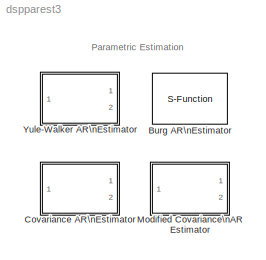
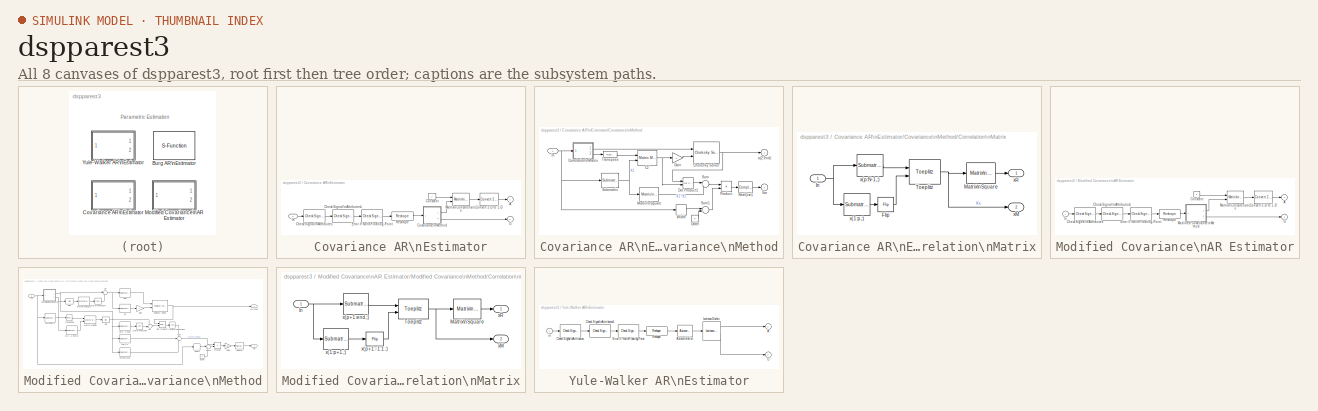
[diagram: thumbnail index - all 8 canvases of the model, root first then tree order]
MODEL dspparest3
KIND library
BLOCK [S-Function] Burg AR\nEstimator
  FunctionName = sdspburg2
  MaskCallbackString = |dspblkburg2|
  MaskDescription = Frame-based parametric AR estimation using the Burg maximum entropy method.  Outputs AR model coefficients A and/or reflection coefficients K, plus the model gain, G.
  MaskDisplay = disp('Burg AR\\nEstimator');\nport_label('output',s.o1,s.o1s);\nport_label('output',s.o2,s.o2s);\nport_label('output',s.o3,s.o3s);\n
  MaskEnableString = on,on,off
  MaskHelp = web(dspbhelp);
  MaskIconFrame = on
  MaskIconOpaque = on
  MaskIconRotate = none
  MaskIconUnits = autoscale
  MaskInitialization = s = dspblkburg2('icon');\n
  MaskPromptString = Output(s):|Inherit estimation order from input dimensions|Estimation order:
  MaskSelfModifiable = on
  MaskStyleString = popup(A and K|A|K),checkbox,edit
  MaskTabNameString = ,,
  MaskToolTipString = on,on,on
  MaskTunableValueString = off,off,off
  MaskType = Burg AR Estimator
  MaskValueString = A|on|4
  MaskVarAliasString = ,,
  MaskVariables = fcn=@1;inheritOrder=@2;ord=@3;
  MaskVisibilityString = on,on,on
  Parameters = fcn, inheritOrder, ord
  Ports = [1, 2]
BLOCK [SubSystem] Covariance AR\nEstimator
  MaskDescription = Frame-based parametric AR estimation using the Covariance method. The AR model coefficients are given in A and the gain is given in G.
  MaskDisplay = disp('Cov AR\\nEstimator')
  MaskEnableString = on
  MaskHelp = web(dspbhelp);
  MaskIconFrame = on
  MaskIconOpaque = off
  MaskIconRotate = none
  MaskIconUnits = autoscale
  MaskPromptString = Estimation order:
  MaskStyleString = edit
  MaskToolTipString = on
  MaskTunableValueString = off
  MaskType = Covariance AR Estimator
  MaskValueString = 4
  MaskVariables = P=@1;
  MaskVisibilityString = on
  Ports = [1, 2]
  TreatAsAtomicUnit = off
BLOCK [Outport] Covariance AR\nEstimator/A
  BusOutputAsStruct = off
  IconDisplay = Port number
  InitialOutput = 0
BLOCK [Reference] Covariance AR\nEstimator/Check Signal\nAttributes  REF=dspsigattribs/Check Signal\nAttributes
  Complexity = Ignore
  DatatypeCheckMethod = Ignore
  DatatypeGeneral = Boolean
  Dimensions = Row vector (2-D)
  DimsCheckMethod = Is...
  DtypeFixedSpecific = Any fixed-point
  DtypeFloatSpecific = Any floating-point
  DtypeIntSpecific = Any integer
  Frame = Frame-based
  Ports = [1, 1]
  SampleMode = Ignore
  ShowPortLabels = on
  SigAttribCheckMethod = Matches attributes exactly
  SourceBlock = dspsigattribs/Check Signal\nAttributes
  SourceType = Check Signal Attributes
BLOCK [Reference] Covariance AR\nEstimator/Check Signal\nAttributes1  REF=dspsigattribs/Check Signal\nAttributes
  Complexity = Ignore
  DatatypeCheckMethod = Ignore
  DatatypeGeneral = Boolean
  Dimensions = Vector (1-D or 2-D)
  DimsCheckMethod = Is...
  DtypeFixedSpecific = Any fixed-point
  DtypeFloatSpecific = Any floating-point
  DtypeIntSpecific = Any integer
  Frame = Ignore
  Ports = [1, 1]
  SampleMode = Ignore
  ShowPortLabels = on
  SigAttribCheckMethod = Does not match attributes exactly
  SourceBlock = dspsigattribs/Check Signal\nAttributes
  SourceType = Check Signal Attributes
BLOCK [Constant] Covariance AR\nEstimator/Constant
  OutDataTypeMode = Inherit via back propagation
BLOCK [Reference] Covariance AR\nEstimator/Convert 2-D to 1-D  REF=dspsigattribs/Convert 2-D to 1-D
  Ports = [1, 1]
  ShowPortLabels = off
  SourceBlock = dspsigattribs/Convert 2-D to 1-D
  SourceType = Convert 2-D to 1-D
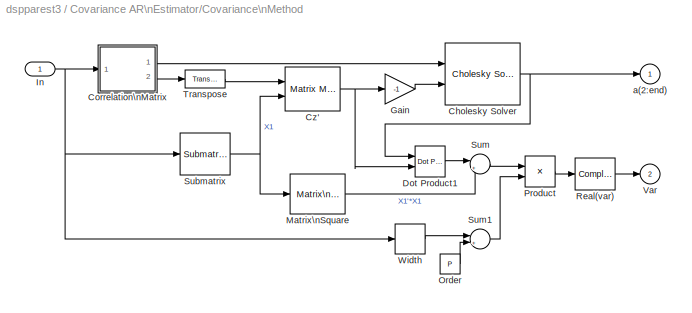
BLOCK [SubSystem] Covariance AR\nEstimator/Covariance\nMethod
  Ports = [1, 2]
  TreatAsAtomicUnit = off
BLOCK [Reference] Covariance AR\nEstimator/Covariance\nMethod/Cholesky Solver  REF=dspsolvers/Cholesky Solver
  Ports = [2, 1]
  ShowPortLabels = on
  SourceBlock = dspsolvers/Cholesky Solver
  SourceType = Cholesky Solver
  errmode = Warning
BLOCK [SubSystem] Covariance AR\nEstimator/Covariance\nMethod/Correlation\nMatrix
  Ports = [1, 2]
  TreatAsAtomicUnit = off
BLOCK [Reference] Covariance AR\nEstimator/Covariance\nMethod/Correlation\nMatrix/Flip  REF=dspindex/Flip
  Ports = [1, 1]
  SourceBlock = dspindex/Flip
  SourceType = Flip
  dim = Columns
BLOCK [Inport] Covariance AR\nEstimator/Covariance\nMethod/Correlation\nMatrix/In
  IconDisplay = Port number
BLOCK [Reference] Covariance AR\nEstimator/Covariance\nMethod/Correlation\nMatrix/Matrix\nSquare  REF=dspmtrx3/Matrix\nSquare
  Ports = [1, 1]
  SourceBlock = dspmtrx3/Matrix\nSquare
  SourceType = Matrix Square
BLOCK [Reference] Covariance AR\nEstimator/Covariance\nMethod/Correlation\nMatrix/Toeplitz  REF=dspmtrx3/Toeplitz
  Ports = [2, 1]
  SourceBlock = dspmtrx3/Toeplitz
  SourceType = Toeplitz
  Symmetric = off
BLOCK [Reference] Covariance AR\nEstimator/Covariance\nMethod/Correlation\nMatrix/x(1:p,:)  REF=dspmtrx3/Submatrix
  ColEndIndex = 1
  ColEndMode = Last
  ColSpan = All columns
  ColStartIndex = 1
  ColStartMode = First
  Ports = [1, 1]
  RowEndIndex = P
  RowEndMode = Index
  RowSpan = Range of rows
  RowStartIndex = P
  RowStartMode = First
  SourceBlock = dspmtrx3/Submatrix
  SourceType = Submatrix
BLOCK [Reference] Covariance AR\nEstimator/Covariance\nMethod/Correlation\nMatrix/x(p:N-1,:)  REF=dspmtrx3/Submatrix
  ColEndIndex = 1
  ColEndMode = Last
  ColSpan = All columns
  ColStartIndex = 1
  ColStartMode = First
  Ports = [1, 1]
  RowEndIndex = 1
  RowEndMode = Offset from last
  RowSpan = Range of rows
  RowStartIndex = P
  RowStartMode = Index
  SourceBlock = dspmtrx3/Submatrix
  SourceType = Submatrix
BLOCK [Outport] Covariance AR\nEstimator/Covariance\nMethod/Correlation\nMatrix/xM
  BusOutputAsStruct = off
  IconDisplay = Port number
  Port = 2
BLOCK [Outport] Covariance AR\nEstimator/Covariance\nMethod/Correlation\nMatrix/xR
  BusOutputAsStruct = off
  IconDisplay = Port number
BLOCK [Reference] Covariance AR\nEstimator/Covariance\nMethod/Cz'  REF=dspmtrx3/Matrix Multiply
  OptimizationLevel = None
  Ports = [2, 1]
  SourceBlock = dspmtrx3/Matrix Multiply
  SourceType = Matrix Multiply
  numInputPorts = 2
BLOCK [Reference] Covariance AR\nEstimator/Covariance\nMethod/Dot Product1  REF=simulink/Math\nOperations/Dot Product
  DoSatur = off
  InputSameDT = off
  LockScale = off
  OutDataType = sfix(16)
  OutScaling = 2^-10
  OutputDataTypeScalingMode = Inherit via internal rule
  Ports = [2, 1]
  RndMeth = Floor
  SourceBlock = simulink/Math\nOperations/Dot Product
  SourceType = Dot Product
BLOCK [Gain] Covariance AR\nEstimator/Covariance\nMethod/Gain
  Gain = -1
BLOCK [Inport] Covariance AR\nEstimator/Covariance\nMethod/In
  IconDisplay = Port number
BLOCK [Reference] Covariance AR\nEstimator/Covariance\nMethod/Matrix\nSquare  REF=dspmtrx3/Matrix\nSquare
  Ports = [1, 1]
  SourceBlock = dspmtrx3/Matrix\nSquare
  SourceType = Matrix Square
BLOCK [Constant] Covariance AR\nEstimator/Covariance\nMethod/Order
  OutDataTypeMode = Inherit via back propagation
  Value = P
BLOCK [Product] Covariance AR\nEstimator/Covariance\nMethod/Product
  Inputs = */
  Ports = [2, 1]
  RndMeth = Floor
BLOCK [ComplexToRealImag] Covariance AR\nEstimator/Covariance\nMethod/Real(var)
  Output = Real
  Ports = [1, 1]
BLOCK [Reference] Covariance AR\nEstimator/Covariance\nMethod/Submatrix  REF=dspmtrx3/Submatrix
  ColEndIndex = 1
  ColEndMode = Last
  ColSpan = All columns
  ColStartIndex = 1
  ColStartMode = First
  Ports = [1, 1]
  RowEndIndex = 1
  RowEndMode = Last
  RowSpan = Range of rows
  RowStartIndex = P+1
  RowStartMode = Index
  SourceBlock = dspmtrx3/Submatrix
  SourceType = Submatrix
BLOCK [Sum] Covariance AR\nEstimator/Covariance\nMethod/Sum
  IconShape = round
  Inputs = |++
  Ports = [2, 1]
BLOCK [Sum] Covariance AR\nEstimator/Covariance\nMethod/Sum1
  IconShape = round
  Inputs = |+-
  Ports = [2, 1]
BLOCK [Reference] Covariance AR\nEstimator/Covariance\nMethod/Transpose  REF=dspmtrx3/Transpose
  Hermitian = on
  Ports = [1, 1]
  SourceBlock = dspmtrx3/Transpose
  SourceType = Transpose
  overflowFlag = on
BLOCK [Outport] Covariance AR\nEstimator/Covariance\nMethod/Var
  BusOutputAsStruct = off
  IconDisplay = Port number
  InitialOutput = 0
  Port = 2
BLOCK [Width] Covariance AR\nEstimator/Covariance\nMethod/Width
  OutputDataTypeScalingMode = All ports same datatype
  ShowAdditionalParam = on
BLOCK [Outport] Covariance AR\nEstimator/Covariance\nMethod/a(2:end)
  BusOutputAsStruct = off
  IconDisplay = Port number
  InitialOutput = 0
BLOCK [Reference] Covariance AR\nEstimator/Error If Not\nFloating-Point  REF=dspsigattribs/Check Signal\nAttributes
  Complexity = Ignore
  DatatypeCheckMethod = Is...
  DatatypeGeneral = Floating-point
  Dimensions = 1-D
  DimsCheckMethod = Ignore
  DtypeFixedSpecific = Any fixed-point
  DtypeFloatSpecific = Any floating-point
  DtypeIntSpecific = Any integer
  Frame = Ignore
  Ports = [1, 1]
  SampleMode = Ignore
  ShowPortLabels = on
  SigAttribCheckMethod = Does not match attributes exactly
  SourceBlock = dspsigattribs/Check Signal\nAttributes
  SourceType = Check Signal Attributes
BLOCK [Outport] Covariance AR\nEstimator/G
  BusOutputAsStruct = off
  IconDisplay = Port number
  InitialOutput = 0
  Port = 2
BLOCK [Inport] Covariance AR\nEstimator/In
  IconDisplay = Port number
BLOCK [Reference] Covariance AR\nEstimator/Matrix\nConcatenation  REF=simulink/Math\nOperations/Matrix\nConcatenation
  Ports = [2, 1]
  SourceBlock = simulink/Math\nOperations/Matrix\nConcatenation
  SourceType = Matrix Concatenation
  catMethod = Vertical
  numInports = 2
BLOCK [Reference] Covariance AR\nEstimator/Reshape  REF=simulink/Math\nOperations/Reshape
  OutputDimensionality = Column vector
  OutputDimensions = [1,1]
  Ports = [1, 1]
  SourceBlock = simulink/Math\nOperations/Reshape
  SourceType = Reshape
BLOCK [SubSystem] Modified Covariance\nAR Estimator
  MaskDescription = Frame-based parametric AR estimation using the Modified Covariance method. The AR model coefficients are given in A and the gain is given in G.
  MaskDisplay = disp('MCov AR\\nEstimator')
  MaskEnableString = on
  MaskHelp = web(dspbhelp);
  MaskIconFrame = on
  MaskIconOpaque = off
  MaskIconRotate = none
  MaskIconUnits = autoscale
  MaskPromptString = Estimation order:
  MaskStyleString = edit
  MaskToolTipString = on
  MaskTunableValueString = off
  MaskType = Modified Covariance AR Estimator
  MaskValueString = 4
  MaskVariables = P=@1;
  MaskVisibilityString = on
  Ports = [1, 2]
  TreatAsAtomicUnit = off
BLOCK [Outport] Modified Covariance\nAR Estimator/A
  BusOutputAsStruct = off
  IconDisplay = Port number
  InitialOutput = 0
BLOCK [Reference] Modified Covariance\nAR Estimator/Check Signal\nAttributes  REF=dspsigattribs/Check Signal\nAttributes
  Complexity = Ignore
  DatatypeCheckMethod = Ignore
  DatatypeGeneral = Boolean
  Dimensions = Row vector (2-D)
  DimsCheckMethod = Is...
  DtypeFixedSpecific = Any fixed-point
  DtypeFloatSpecific = Any floating-point
  DtypeIntSpecific = Any integer
  Frame = Frame-based
  Ports = [1, 1]
  SampleMode = Ignore
  ShowPortLabels = on
  SigAttribCheckMethod = Matches attributes exactly
  SourceBlock = dspsigattribs/Check Signal\nAttributes
  SourceType = Check Signal Attributes
BLOCK [Reference] Modified Covariance\nAR Estimator/Check Signal\nAttributes1  REF=dspsigattribs/Check Signal\nAttributes
  Complexity = Ignore
  DatatypeCheckMethod = Ignore
  DatatypeGeneral = Boolean
  Dimensions = Vector (1-D or 2-D)
  DimsCheckMethod = Is...
  DtypeFixedSpecific = Any fixed-point
  DtypeFloatSpecific = Any floating-point
  DtypeIntSpecific = Any integer
  Frame = Ignore
  Ports = [1, 1]
  SampleMode = Ignore
  ShowPortLabels = on
  SigAttribCheckMethod = Does not match attributes exactly
  SourceBlock = dspsigattribs/Check Signal\nAttributes
  SourceType = Check Signal Attributes
BLOCK [Constant] Modified Covariance\nAR Estimator/Constant
  OutDataTypeMode = Inherit via back propagation
BLOCK [Reference] Modified Covariance\nAR Estimator/Convert 2-D to 1-D  REF=dspsigattribs/Convert 2-D to 1-D
  Ports = [1, 1]
  ShowPortLabels = off
  SourceBlock = dspsigattribs/Convert 2-D to 1-D
  SourceType = Convert 2-D to 1-D
BLOCK [Reference] Modified Covariance\nAR Estimator/Error If Not\nFloating-Point  REF=dspsigattribs/Check Signal\nAttributes
  Complexity = Ignore
  DatatypeCheckMethod = Is...
  DatatypeGeneral = Floating-point
  Dimensions = 1-D
  DimsCheckMethod = Ignore
  DtypeFixedSpecific = Any fixed-point
  DtypeFloatSpecific = Any floating-point
  DtypeIntSpecific = Any integer
  Frame = Ignore
  Ports = [1, 1]
  SampleMode = Ignore
  ShowPortLabels = on
  SigAttribCheckMethod = Does not match attributes exactly
  SourceBlock = dspsigattribs/Check Signal\nAttributes
  SourceType = Check Signal Attributes
BLOCK [Outport] Modified Covariance\nAR Estimator/G
  BusOutputAsStruct = off
  IconDisplay = Port number
  InitialOutput = 0
  Port = 2
BLOCK [Inport] Modified Covariance\nAR Estimator/In
  IconDisplay = Port number
BLOCK [Reference] Modified Covariance\nAR Estimator/Matrix\nConcatenation  REF=simulink/Math\nOperations/Matrix\nConcatenation
  Ports = [2, 1]
  SourceBlock = simulink/Math\nOperations/Matrix\nConcatenation
  SourceType = Matrix Concatenation
  catMethod = Vertical
  numInports = 2
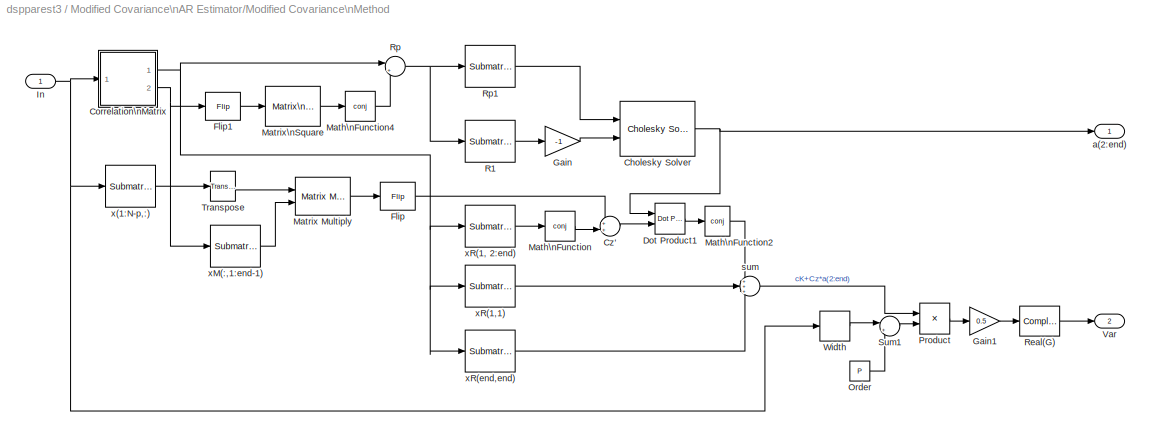
BLOCK [SubSystem] Modified Covariance\nAR Estimator/Modified Covariance\nMethod
  Ports = [1, 2]
  TreatAsAtomicUnit = off
BLOCK [Reference] Modified Covariance\nAR Estimator/Modified Covariance\nMethod/Cholesky Solver  REF=dspsolvers/Cholesky Solver
  Ports = [2, 1]
  ShowPortLabels = on
  SourceBlock = dspsolvers/Cholesky Solver
  SourceType = Cholesky Solver
  errmode = Warning
BLOCK [SubSystem] Modified Covariance\nAR Estimator/Modified Covariance\nMethod/Correlation\nMatrix
  MaskIconFrame = on
  MaskIconOpaque = on
  MaskIconRotate = none
  MaskIconUnits = autoscale
  Ports = [1, 2]
  TreatAsAtomicUnit = off
BLOCK [Inport] Modified Covariance\nAR Estimator/Modified Covariance\nMethod/Correlation\nMatrix/In
  IconDisplay = Port number
BLOCK [Reference] Modified Covariance\nAR Estimator/Modified Covariance\nMethod/Correlation\nMatrix/Matrix\nSquare  REF=dspmtrx3/Matrix\nSquare
  Ports = [1, 1]
  SourceBlock = dspmtrx3/Matrix\nSquare
  SourceType = Matrix Square
BLOCK [Reference] Modified Covariance\nAR Estimator/Modified Covariance\nMethod/Correlation\nMatrix/Toeplitz  REF=dspmtrx3/Toeplitz
  Ports = [2, 1]
  SourceBlock = dspmtrx3/Toeplitz
  SourceType = Toeplitz
  Symmetric = off
  overflowFlag = on
BLOCK [Reference] Modified Covariance\nAR Estimator/Modified Covariance\nMethod/Correlation\nMatrix/x(1:p+1,:)  REF=dspmtrx3/Submatrix
  ColEndIndex = 1
  ColEndMode = Last
  ColSpan = All columns
  ColStartIndex = 1
  ColStartMode = First
  Ports = [1, 1]
  RowEndIndex = P+1
  RowEndMode = Index
  RowSpan = Range of rows
  RowStartIndex = P
  RowStartMode = First
  SourceBlock = dspmtrx3/Submatrix
  SourceType = Submatrix
BLOCK [Reference] Modified Covariance\nAR Estimator/Modified Covariance\nMethod/Correlation\nMatrix/x(p+1:-1:1.:)  REF=dspindex/Flip
  Ports = [1, 1]
  SourceBlock = dspindex/Flip
  SourceType = Flip
  dim = Columns
BLOCK [Reference] Modified Covariance\nAR Estimator/Modified Covariance\nMethod/Correlation\nMatrix/x(p+1:end,:)  REF=dspmtrx3/Submatrix
  ColEndIndex = 1
  ColEndMode = Last
  ColSpan = All columns
  ColStartIndex = 1
  ColStartMode = First
  Ports = [1, 1]
  RowEndIndex = 1
  RowEndMode = Last
  RowSpan = Range of rows
  RowStartIndex = P+1
  RowStartMode = Index
  SourceBlock = dspmtrx3/Submatrix
  SourceType = Submatrix
BLOCK [Outport] Modified Covariance\nAR Estimator/Modified Covariance\nMethod/Correlation\nMatrix/xM
  BusOutputAsStruct = off
  IconDisplay = Port number
  Port = 2
BLOCK [Outport] Modified Covariance\nAR Estimator/Modified Covariance\nMethod/Correlation\nMatrix/xR
  BusOutputAsStruct = off
  IconDisplay = Port number
BLOCK [Sum] Modified Covariance\nAR Estimator/Modified Covariance\nMethod/Cz'
  IconShape = round
  Inputs = ++|
  Ports = [2, 1]
BLOCK [Reference] Modified Covariance\nAR Estimator/Modified Covariance\nMethod/Dot Product1  REF=simulink/Math\nOperations/Dot Product
  DoSatur = off
  InputSameDT = off
  LockScale = off
  OutDataType = sfix(16)
  OutScaling = 2^-10
  OutputDataTypeScalingMode = Inherit via internal rule
  Ports = [2, 1]
  RndMeth = Floor
  SourceBlock = simulink/Math\nOperations/Dot Product
  SourceType = Dot Product
BLOCK [Reference] Modified Covariance\nAR Estimator/Modified Covariance\nMethod/Flip  REF=dspindex/Flip
  Ports = [1, 1]
  SourceBlock = dspindex/Flip
  SourceType = Flip
  dim = Rows
BLOCK [Reference] Modified Covariance\nAR Estimator/Modified Covariance\nMethod/Flip1  REF=dspindex/Flip
  Ports = [1, 1]
  SourceBlock = dspindex/Flip
  SourceType = Flip
  dim = Rows
BLOCK [Gain] Modified Covariance\nAR Estimator/Modified Covariance\nMethod/Gain
  Gain = -1
BLOCK [Gain] Modified Covariance\nAR Estimator/Modified Covariance\nMethod/Gain1
  Gain = 0.5
BLOCK [Inport] Modified Covariance\nAR Estimator/Modified Covariance\nMethod/In
  IconDisplay = Port number
BLOCK [Math] Modified Covariance\nAR Estimator/Modified Covariance\nMethod/Math\nFunction
  Operator = conj
  Ports = [1, 1]
BLOCK [Math] Modified Covariance\nAR Estimator/Modified Covariance\nMethod/Math\nFunction2
  Operator = conj
  Ports = [1, 1]
BLOCK [Math] Modified Covariance\nAR Estimator/Modified Covariance\nMethod/Math\nFunction4
  Operator = conj
  Ports = [1, 1]
BLOCK [Reference] Modified Covariance\nAR Estimator/Modified Covariance\nMethod/Matrix Multiply  REF=dspmtrx3/Matrix Multiply
  OptimizationLevel = None
  Ports = [2, 1]
  SourceBlock = dspmtrx3/Matrix Multiply
  SourceType = Matrix Multiply
  numInputPorts = 2
BLOCK [Reference] Modified Covariance\nAR Estimator/Modified Covariance\nMethod/Matrix\nSquare  REF=dspmtrx3/Matrix\nSquare
  Ports = [1, 1]
  SourceBlock = dspmtrx3/Matrix\nSquare
  SourceType = Matrix Square
BLOCK [Constant] Modified Covariance\nAR Estimator/Modified Covariance\nMethod/Order
  OutDataTypeMode = Inherit via back propagation
  Value = P
BLOCK [Product] Modified Covariance\nAR Estimator/Modified Covariance\nMethod/Product
  Inputs = */
  Ports = [2, 1]
  RndMeth = Floor
BLOCK [Reference] Modified Covariance\nAR Estimator/Modified Covariance\nMethod/R1  REF=dspmtrx3/Submatrix
  ColEndIndex = 1
  ColEndMode = Last
  ColSpan = One column
  ColStartIndex = 2
  ColStartMode = First
  Ports = [1, 1]
  RowEndIndex = P
  RowEndMode = Last
  RowSpan = Range of rows
  RowStartIndex = 2
  RowStartMode = Index
  SourceBlock = dspmtrx3/Submatrix
  SourceType = Submatrix
BLOCK [ComplexToRealImag] Modified Covariance\nAR Estimator/Modified Covariance\nMethod/Real(G)
  Output = Real
  Ports = [1, 1]
BLOCK [Sum] Modified Covariance\nAR Estimator/Modified Covariance\nMethod/Rp
  IconShape = round
  Inputs = |++
  Ports = [2, 1]
BLOCK [Reference] Modified Covariance\nAR Estimator/Modified Covariance\nMethod/Rp1  REF=dspmtrx3/Submatrix
  ColEndIndex = 1
  ColEndMode = Last
  ColSpan = Range of columns
  ColStartIndex = 2
  ColStartMode = Index
  Ports = [1, 1]
  RowEndIndex = P
  RowEndMode = Last
  RowSpan = Range of rows
  RowStartIndex = 2
  RowStartMode = Index
  SourceBlock = dspmtrx3/Submatrix
  SourceType = Submatrix
BLOCK [Sum] Modified Covariance\nAR Estimator/Modified Covariance\nMethod/Sum1
  IconShape = round
  Inputs = |+-
  Ports = [2, 1]
BLOCK [Reference] Modified Covariance\nAR Estimator/Modified Covariance\nMethod/Transpose  REF=dspmtrx3/Transpose
  Hermitian = on
  Ports = [1, 1]
  SourceBlock = dspmtrx3/Transpose
  SourceType = Transpose
  overflowFlag = on
BLOCK [Outport] Modified Covariance\nAR Estimator/Modified Covariance\nMethod/Var
  BusOutputAsStruct = off
  IconDisplay = Port number
  Port = 2
BLOCK [Width] Modified Covariance\nAR Estimator/Modified Covariance\nMethod/Width
  OutputDataTypeScalingMode = All ports same datatype
  ShowAdditionalParam = on
BLOCK [Outport] Modified Covariance\nAR Estimator/Modified Covariance\nMethod/a(2:end)
  BusOutputAsStruct = off
  IconDisplay = Port number
BLOCK [Sum] Modified Covariance\nAR Estimator/Modified Covariance\nMethod/sum
  IconShape = round
  Inputs = +++
  Ports = [3, 1]
BLOCK [Reference] Modified Covariance\nAR Estimator/Modified Covariance\nMethod/x(1:N-p,:)  REF=dspmtrx3/Submatrix
  ColEndIndex = P
  ColEndMode = Index
  ColSpan = All columns
  ColStartIndex = 1
  ColStartMode = First
  Ports = [1, 1]
  RowEndIndex = P
  RowEndMode = Offset from last
  RowSpan = Range of rows
  RowStartIndex = 1
  RowStartMode = First
  SourceBlock = dspmtrx3/Submatrix
  SourceType = Submatrix
BLOCK [Reference] Modified Covariance\nAR Estimator/Modified Covariance\nMethod/xM(:,1:end-1)  REF=dspmtrx3/Submatrix
  ColEndIndex = 1
  ColEndMode = Offset from last
  ColSpan = Range of columns
  ColStartIndex = 1
  ColStartMode = First
  Ports = [1, 1]
  RowEndIndex = P
  RowEndMode = Offset from last
  RowSpan = All rows
  RowStartIndex = 1
  RowStartMode = First
  SourceBlock = dspmtrx3/Submatrix
  SourceType = Submatrix
BLOCK [Reference] Modified Covariance\nAR Estimator/Modified Covariance\nMethod/xR(1, 2:end)  REF=dspmtrx3/Submatrix
  ColEndIndex = 1
  ColEndMode = Last
  ColSpan = Range of columns
  ColStartIndex = 2
  ColStartMode = Index
  Ports = [1, 1]
  RowEndIndex = P
  RowEndMode = Last
  RowSpan = One row
  RowStartIndex = 2
  RowStartMode = First
  SourceBlock = dspmtrx3/Submatrix
  SourceType = Submatrix
BLOCK [Reference] Modified Covariance\nAR Estimator/Modified Covariance\nMethod/xR(1,1)  REF=dspmtrx3/Submatrix
  ColEndIndex = 1
  ColEndMode = Last
  ColSpan = One column
  ColStartIndex = 2
  ColStartMode = First
  Ports = [1, 1]
  RowEndIndex = 1
  RowEndMode = Index
  RowSpan = One row
  RowStartIndex = 2
  RowStartMode = First
  SourceBlock = dspmtrx3/Submatrix
  SourceType = Submatrix
BLOCK [Reference] Modified Covariance\nAR Estimator/Modified Covariance\nMethod/xR(end,end)  REF=dspmtrx3/Submatrix
  ColEndIndex = 1
  ColEndMode = Last
  ColSpan = One column
  ColStartIndex = 0
  ColStartMode = Last
  Ports = [1, 1]
  RowEndIndex = 1
  RowEndMode = Last
  RowSpan = One row
  RowStartIndex = 0
  RowStartMode = Last
  SourceBlock = dspmtrx3/Submatrix
  SourceType = Submatrix
BLOCK [Reference] Modified Covariance\nAR Estimator/Reshape  REF=simulink/Math\nOperations/Reshape
  OutputDimensionality = Column vector
  OutputDimensions = [1,1]
  Ports = [1, 1]
  SourceBlock = simulink/Math\nOperations/Reshape
  SourceType = Reshape
BLOCK [SubSystem] Yule-Walker AR\nEstimator
  MaskCallbackString = |dspblkywestim|
  MaskDescription = Frame-based parametric AR estimation using the Yule-Walker method. The AR model coefficients are given in A (polynomial coefficients) and/or K (reflection coefficients).  The square of the model gain is given in G.
  MaskDisplay = disp('Yule AR\\nEstimator')
  MaskEnableString = on,on,off
  MaskHelp = web(dspbhelp);
  MaskIconFrame = on
  MaskIconOpaque = off
  MaskIconRotate = none
  MaskIconUnits = autoscale
  MaskInitialization = acf = dspblkywestim('computeVars',ord);\ndspblkywestim('init');\n
  MaskPromptString = Output(s):|Inherit estimation order from input dimensions|Estimation order:
  MaskSelfModifiable = on
  MaskStyleString = popup(A and K|A|K),checkbox,edit
  MaskTabNameString = ,,
  MaskToolTipString = on,on,on
  MaskTunableValueString = off,off,off
  MaskType = Yule-Walker AR Estimator
  MaskValueString = A|on|4
  MaskVarAliasString = ,,
  MaskVariables = ywArOutType=@1;inheritOrder=@2;ord=@3;
  MaskVisibilityString = on,on,on
  Ports = [1, 2]
  TreatAsAtomicUnit = off
BLOCK [Outport] Yule-Walker AR\nEstimator/A
  BusOutputAsStruct = off
  IconDisplay = Port number
  InitialOutput = 0
BLOCK [Reference] Yule-Walker AR\nEstimator/Autocorrelation  REF=dspstat3/Autocorrelation
  AllPositiveLags = on
  DialogController = dspDDGCreate
  DialogControllerArgs = DataTag0
  Ports = [1, 1]
  SourceBlock = dspstat3/Autocorrelation
  SourceType = Autocorrelation
  accumFracLength = 30
  accumMode = Same as product output
  accumWordLength = 32
  additionalParams = off
  allowOverrides = on
  bias = Biased
  domain = Time
  maxlag = acf
  outputFracLength = 15
  outputMode = Same as accumulator
  outputWordLength = 16
  overflowMode = off
  prodOutputFracLength = 30
  prodOutputMode = Same as input
  prodOutputWordLength = 32
  roundingMode = Floor
BLOCK [Reference] Yule-Walker AR\nEstimator/Check Signal\nAttributes  REF=dspsigattribs/Check Signal\nAttributes
  Complexity = Ignore
  DatatypeCheckMethod = Ignore
  DatatypeGeneral = Boolean
  Dimensions = Row vector (2-D)
  DimsCheckMethod = Is...
  DtypeFixedSpecific = Any fixed-point
  DtypeFloatSpecific = Any floating-point
  DtypeIntSpecific = Any integer
  Frame = Frame-based
  Ports = [1, 1]
  SampleMode = Ignore
  ShowPortLabels = on
  SigAttribCheckMethod = Matches attributes exactly
  SourceBlock = dspsigattribs/Check Signal\nAttributes
  SourceType = Check Signal Attributes
BLOCK [Reference] Yule-Walker AR\nEstimator/Check Signal\nAttributes1  REF=dspsigattribs/Check Signal\nAttributes
  Complexity = Ignore
  DatatypeCheckMethod = Ignore
  DatatypeGeneral = Boolean
  Dimensions = Vector (1-D or 2-D) or scalar
  DimsCheckMethod = Is...
  DtypeFixedSpecific = Any fixed-point
  DtypeFloatSpecific = Any floating-point
  DtypeIntSpecific = Any integer
  Frame = Ignore
  Ports = [1, 1]
  SampleMode = Ignore
  ShowPortLabels = on
  SigAttribCheckMethod = Does not match attributes exactly
  SourceBlock = dspsigattribs/Check Signal\nAttributes
  SourceType = Check Signal Attributes
BLOCK [Reference] Yule-Walker AR\nEstimator/Error If Not\nFloating-Point  REF=dspsigattribs/Check Signal\nAttributes
  Complexity = Ignore
  DatatypeCheckMethod = Is...
  DatatypeGeneral = Floating-point
  Dimensions = 1-D
  DimsCheckMethod = Ignore
  DtypeFixedSpecific = Any fixed-point
  DtypeFloatSpecific = Any floating-point
  DtypeIntSpecific = Any integer
  Frame = Ignore
  Ports = [1, 1]
  SampleMode = Ignore
  ShowPortLabels = on
  SigAttribCheckMethod = Does not match attributes exactly
  SourceBlock = dspsigattribs/Check Signal\nAttributes
  SourceType = Check Signal Attributes
BLOCK [Outport] Yule-Walker AR\nEstimator/G
  BusOutputAsStruct = off
  IconDisplay = Port number
  Port = 2
BLOCK [Reference] Yule-Walker AR\nEstimator/Levinson-Durbin  REF=dspsolvers/Levinson-Durbin
  Ports = [1, 2]
  SourceBlock = dspsolvers/Levinson-Durbin
  SourceType = Levinson-Durbin
  accumFracLength = 30
  accumMode = User-defined
  accumWordLength = 32
  additionalParams = off
  allowOverrides = off
  coeffOutFcn = A
  firstCoeffFracLength = 15
  firstCoeffMode = Binary point scaling
  firstCoeffWordLength = 16
  outP = on
  outputFracLength = 15
  outputMode = Same as input
  outputWordLength = 16
  overflowMode = off
  prodOutputFracLength = 30
  prodOutputMode = User-defined
  prodOutputWordLength = 32
  roundingMode = Floor
  secondCoeffFracLength = 15
  secondCoeffMode = Binary point scaling
  secondCoeffWordLength = 16
  zeroInpHandling = on
BLOCK [Reference] Yule-Walker AR\nEstimator/Reshape  REF=simulink/Math\nOperations/Reshape
  OutputDimensionality = Column vector
  OutputDimensions = [1,1]
  Ports = [1, 1]
  SourceBlock = simulink/Math\nOperations/Reshape
  SourceType = Reshape
BLOCK [Inport] Yule-Walker AR\nEstimator/in
  IconDisplay = Port number
ANNOTATION (root): Parametric Estimation
LINE Covariance AR\nEstimator/Check Signal\nAttributes1:1 -> Covariance AR\nEstimator/Error If Not\nFloating-Point:1
LINE Covariance AR\nEstimator/Check Signal\nAttributes:1 -> Covariance AR\nEstimator/Check Signal\nAttributes1:1
LINE Covariance AR\nEstimator/Constant:1 -> Covariance AR\nEstimator/Matrix\nConcatenation:1
LINE Covariance AR\nEstimator/Convert 2-D to 1-D:1 -> Covariance AR\nEstimator/A:1
NET Covariance AR\nEstimator/Covariance\nMethod/Cholesky Solver:1 -> Covariance AR\nEstimator/Covariance\nMethod/Dot Product1:1, Covariance AR\nEstimator/Covariance\nMethod/a(2:end):1
LINE Covariance AR\nEstimator/Covariance\nMethod/Correlation\nMatrix/Flip:1 -> Covariance AR\nEstimator/Covariance\nMethod/Correlation\nMatrix/Toeplitz:2
NET Covariance AR\nEstimator/Covariance\nMethod/Correlation\nMatrix/In:1 -> Covariance AR\nEstimator/Covariance\nMethod/Correlation\nMatrix/x(1:p,:):1, Covariance AR\nEstimator/Covariance\nMethod/Correlation\nMatrix/x(p:N-1,:):1
LINE Covariance AR\nEstimator/Covariance\nMethod/Correlation\nMatrix/Matrix\nSquare:1 -> Covariance AR\nEstimator/Covariance\nMethod/Correlation\nMatrix/xR:1
NET Covariance AR\nEstimator/Covariance\nMethod/Correlation\nMatrix/Toeplitz:1 -> Covariance AR\nEstimator/Covariance\nMethod/Correlation\nMatrix/Matrix\nSquare:1, Covariance AR\nEstimator/Covariance\nMethod/Correlation\nMatrix/xM:1
LINE Covariance AR\nEstimator/Covariance\nMethod/Correlation\nMatrix/x(1:p,:):1 -> Covariance AR\nEstimator/Covariance\nMethod/Correlation\nMatrix/Flip:1
LINE Covariance AR\nEstimator/Covariance\nMethod/Correlation\nMatrix/x(p:N-1,:):1 -> Covariance AR\nEstimator/Covariance\nMethod/Correlation\nMatrix/Toeplitz:1
LINE Covariance AR\nEstimator/Covariance\nMethod/Correlation\nMatrix:1 -> Covariance AR\nEstimator/Covariance\nMethod/Cholesky Solver:1
LINE Covariance AR\nEstimator/Covariance\nMethod/Correlation\nMatrix:2 -> Covariance AR\nEstimator/Covariance\nMethod/Transpose:1
NET Covariance AR\nEstimator/Covariance\nMethod/Cz':1 -> Covariance AR\nEstimator/Covariance\nMethod/Dot Product1:2, Covariance AR\nEstimator/Covariance\nMethod/Gain:1
LINE Covariance AR\nEstimator/Covariance\nMethod/Dot Product1:1 -> Covariance AR\nEstimator/Covariance\nMethod/Sum:1
LINE Covariance AR\nEstimator/Covariance\nMethod/Gain:1 -> Covariance AR\nEstimator/Covariance\nMethod/Cholesky Solver:2
NET Covariance AR\nEstimator/Covariance\nMethod/In:1 -> Covariance AR\nEstimator/Covariance\nMethod/Correlation\nMatrix:1, Covariance AR\nEstimator/Covariance\nMethod/Submatrix:1, Covariance AR\nEstimator/Covariance\nMethod/Width:1
LINE Covariance AR\nEstimator/Covariance\nMethod/Matrix\nSquare:1 -> Covariance AR\nEstimator/Covariance\nMethod/Sum:2
LINE Covariance AR\nEstimator/Covariance\nMethod/Order:1 -> Covariance AR\nEstimator/Covariance\nMethod/Sum1:2
LINE Covariance AR\nEstimator/Covariance\nMethod/Product:1 -> Covariance AR\nEstimator/Covariance\nMethod/Real(var):1
LINE Covariance AR\nEstimator/Covariance\nMethod/Real(var):1 -> Covariance AR\nEstimator/Covariance\nMethod/Var:1
NET Covariance AR\nEstimator/Covariance\nMethod/Submatrix:1 -> Covariance AR\nEstimator/Covariance\nMethod/Cz':2, Covariance AR\nEstimator/Covariance\nMethod/Matrix\nSquare:1
LINE Covariance AR\nEstimator/Covariance\nMethod/Sum1:1 -> Covariance AR\nEstimator/Covariance\nMethod/Product:2
LINE Covariance AR\nEstimator/Covariance\nMethod/Sum:1 -> Covariance AR\nEstimator/Covariance\nMethod/Product:1
LINE Covariance AR\nEstimator/Covariance\nMethod/Transpose:1 -> Covariance AR\nEstimator/Covariance\nMethod/Cz':1
LINE Covariance AR\nEstimator/Covariance\nMethod/Width:1 -> Covariance AR\nEstimator/Covariance\nMethod/Sum1:1
LINE Covariance AR\nEstimator/Covariance\nMethod:1 -> Covariance AR\nEstimator/Matrix\nConcatenation:2
LINE Covariance AR\nEstimator/Covariance\nMethod:2 -> Covariance AR\nEstimator/G:1
LINE Covariance AR\nEstimator/Error If Not\nFloating-Point:1 -> Covariance AR\nEstimator/Reshape:1
LINE Covariance AR\nEstimator/In:1 -> Covariance AR\nEstimator/Check Signal\nAttributes:1
LINE Covariance AR\nEstimator/Matrix\nConcatenation:1 -> Covariance AR\nEstimator/Convert 2-D to 1-D:1
LINE Covariance AR\nEstimator/Reshape:1 -> Covariance AR\nEstimator/Covariance\nMethod:1
LINE Modified Covariance\nAR Estimator/Check Signal\nAttributes1:1 -> Modified Covariance\nAR Estimator/Error If Not\nFloating-Point:1
LINE Modified Covariance\nAR Estimator/Check Signal\nAttributes:1 -> Modified Covariance\nAR Estimator/Check Signal\nAttributes1:1
LINE Modified Covariance\nAR Estimator/Constant:1 -> Modified Covariance\nAR Estimator/Matrix\nConcatenation:1
LINE Modified Covariance\nAR Estimator/Convert 2-D to 1-D:1 -> Modified Covariance\nAR Estimator/A:1
LINE Modified Covariance\nAR Estimator/Error If Not\nFloating-Point:1 -> Modified Covariance\nAR Estimator/Reshape:1
LINE Modified Covariance\nAR Estimator/In:1 -> Modified Covariance\nAR Estimator/Check Signal\nAttributes:1
LINE Modified Covariance\nAR Estimator/Matrix\nConcatenation:1 -> Modified Covariance\nAR Estimator/Convert 2-D to 1-D:1
NET Modified Covariance\nAR Estimator/Modified Covariance\nMethod/Cholesky Solver:1 -> Modified Covariance\nAR Estimator/Modified Covariance\nMethod/Dot Product1:1, Modified Covariance\nAR Estimator/Modified Covariance\nMethod/a(2:end):1
NET Modified Covariance\nAR Estimator/Modified Covariance\nMethod/Correlation\nMatrix/In:1 -> Modified Covariance\nAR Estimator/Modified Covariance\nMethod/Correlation\nMatrix/x(1:p+1,:):1, Modified Covariance\nAR Estimator/Modified Covariance\nMethod/Correlation\nMatrix/x(p+1:end,:):1
LINE Modified Covariance\nAR Estimator/Modified Covariance\nMethod/Correlation\nMatrix/Matrix\nSquare:1 -> Modified Covariance\nAR Estimator/Modified Covariance\nMethod/Correlation\nMatrix/xR:1
NET Modified Covariance\nAR Estimator/Modified Covariance\nMethod/Correlation\nMatrix/Toeplitz:1 -> Modified Covariance\nAR Estimator/Modified Covariance\nMethod/Correlation\nMatrix/Matrix\nSquare:1, Modified Covariance\nAR Estimator/Modified Covariance\nMethod/Correlation\nMatrix/xM:1
LINE Modified Covariance\nAR Estimator/Modified Covariance\nMethod/Correlation\nMatrix/x(1:p+1,:):1 -> Modified Covariance\nAR Estimator/Modified Covariance\nMethod/Correlation\nMatrix/x(p+1:-1:1.:):1
LINE Modified Covariance\nAR Estimator/Modified Covariance\nMethod/Correlation\nMatrix/x(p+1:-1:1.:):1 -> Modified Covariance\nAR Estimator/Modified Covariance\nMethod/Correlation\nMatrix/Toeplitz:2
LINE Modified Covariance\nAR Estimator/Modified Covariance\nMethod/Correlation\nMatrix/x(p+1:end,:):1 -> Modified Covariance\nAR Estimator/Modified Covariance\nMethod/Correlation\nMatrix/Toeplitz:1
NET Modified Covariance\nAR Estimator/Modified Covariance\nMethod/Correlation\nMatrix:1 -> Modified Covariance\nAR Estimator/Modified Covariance\nMethod/Rp:1, Modified Covariance\nAR Estimator/Modified Covariance\nMethod/xR(1, 2:end):1, Modified Covariance\nAR Estimator/Modified Covariance\nMethod/xR(1,1):1, Modified Covariance\nAR Estimator/Modified Covariance\nMethod/xR(end,end):1
NET Modified Covariance\nAR Estimator/Modified Covariance\nMethod/Correlation\nMatrix:2 -> Modified Covariance\nAR Estimator/Modified Covariance\nMethod/Flip1:1, Modified Covariance\nAR Estimator/Modified Covariance\nMethod/xM(:,1:end-1):1
LINE Modified Covariance\nAR Estimator/Modified Covariance\nMethod/Cz':1 -> Modified Covariance\nAR Estimator/Modified Covariance\nMethod/Dot Product1:2
LINE Modified Covariance\nAR Estimator/Modified Covariance\nMethod/Dot Product1:1 -> Modified Covariance\nAR Estimator/Modified Covariance\nMethod/Math\nFunction2:1
LINE Modified Covariance\nAR Estimator/Modified Covariance\nMethod/Flip1:1 -> Modified Covariance\nAR Estimator/Modified Covariance\nMethod/Matrix\nSquare:1
LINE Modified Covariance\nAR Estimator/Modified Covariance\nMethod/Flip:1 -> Modified Covariance\nAR Estimator/Modified Covariance\nMethod/Cz':1
LINE Modified Covariance\nAR Estimator/Modified Covariance\nMethod/Gain1:1 -> Modified Covariance\nAR Estimator/Modified Covariance\nMethod/Real(G):1
LINE Modified Covariance\nAR Estimator/Modified Covariance\nMethod/Gain:1 -> Modified Covariance\nAR Estimator/Modified Covariance\nMethod/Cholesky Solver:2
NET Modified Covariance\nAR Estimator/Modified Covariance\nMethod/In:1 -> Modified Covariance\nAR Estimator/Modified Covariance\nMethod/Correlation\nMatrix:1, Modified Covariance\nAR Estimator/Modified Covariance\nMethod/Width:1, Modified Covariance\nAR Estimator/Modified Covariance\nMethod/x(1:N-p,:):1
LINE Modified Covariance\nAR Estimator/Modified Covariance\nMethod/Math\nFunction2:1 -> Modified Covariance\nAR Estimator/Modified Covariance\nMethod/sum:1
LINE Modified Covariance\nAR Estimator/Modified Covariance\nMethod/Math\nFunction4:1 -> Modified Covariance\nAR Estimator/Modified Covariance\nMethod/Rp:2
LINE Modified Covariance\nAR Estimator/Modified Covariance\nMethod/Math\nFunction:1 -> Modified Covariance\nAR Estimator/Modified Covariance\nMethod/Cz':2
LINE Modified Covariance\nAR Estimator/Modified Covariance\nMethod/Matrix Multiply:1 -> Modified Covariance\nAR Estimator/Modified Covariance\nMethod/Flip:1
LINE Modified Covariance\nAR Estimator/Modified Covariance\nMethod/Matrix\nSquare:1 -> Modified Covariance\nAR Estimator/Modified Covariance\nMethod/Math\nFunction4:1
LINE Modified Covariance\nAR Estimator/Modified Covariance\nMethod/Order:1 -> Modified Covariance\nAR Estimator/Modified Covariance\nMethod/Sum1:2
LINE Modified Covariance\nAR Estimator/Modified Covariance\nMethod/Product:1 -> Modified Covariance\nAR Estimator/Modified Covariance\nMethod/Gain1:1
LINE Modified Covariance\nAR Estimator/Modified Covariance\nMethod/R1:1 -> Modified Covariance\nAR Estimator/Modified Covariance\nMethod/Gain:1
LINE Modified Covariance\nAR Estimator/Modified Covariance\nMethod/Real(G):1 -> Modified Covariance\nAR Estimator/Modified Covariance\nMethod/Var:1
LINE Modified Covariance\nAR Estimator/Modified Covariance\nMethod/Rp1:1 -> Modified Covariance\nAR Estimator/Modified Covariance\nMethod/Cholesky Solver:1
NET Modified Covariance\nAR Estimator/Modified Covariance\nMethod/Rp:1 -> Modified Covariance\nAR Estimator/Modified Covariance\nMethod/R1:1, Modified Covariance\nAR Estimator/Modified Covariance\nMethod/Rp1:1
LINE Modified Covariance\nAR Estimator/Modified Covariance\nMethod/Sum1:1 -> Modified Covariance\nAR Estimator/Modified Covariance\nMethod/Product:2
LINE Modified Covariance\nAR Estimator/Modified Covariance\nMethod/Transpose:1 -> Modified Covariance\nAR Estimator/Modified Covariance\nMethod/Matrix Multiply:1
LINE Modified Covariance\nAR Estimator/Modified Covariance\nMethod/Width:1 -> Modified Covariance\nAR Estimator/Modified Covariance\nMethod/Sum1:1
LINE Modified Covariance\nAR Estimator/Modified Covariance\nMethod/sum:1 -> Modified Covariance\nAR Estimator/Modified Covariance\nMethod/Product:1
LINE Modified Covariance\nAR Estimator/Modified Covariance\nMethod/x(1:N-p,:):1 -> Modified Covariance\nAR Estimator/Modified Covariance\nMethod/Transpose:1
LINE Modified Covariance\nAR Estimator/Modified Covariance\nMethod/xM(:,1:end-1):1 -> Modified Covariance\nAR Estimator/Modified Covariance\nMethod/Matrix Multiply:2
LINE Modified Covariance\nAR Estimator/Modified Covariance\nMethod/xR(1, 2:end):1 -> Modified Covariance\nAR Estimator/Modified Covariance\nMethod/Math\nFunction:1
LINE Modified Covariance\nAR Estimator/Modified Covariance\nMethod/xR(1,1):1 -> Modified Covariance\nAR Estimator/Modified Covariance\nMethod/sum:2
LINE Modified Covariance\nAR Estimator/Modified Covariance\nMethod/xR(end,end):1 -> Modified Covariance\nAR Estimator/Modified Covariance\nMethod/sum:3
LINE Modified Covariance\nAR Estimator/Modified Covariance\nMethod:1 -> Modified Covariance\nAR Estimator/Matrix\nConcatenation:2
LINE Modified Covariance\nAR Estimator/Modified Covariance\nMethod:2 -> Modified Covariance\nAR Estimator/G:1
LINE Modified Covariance\nAR Estimator/Reshape:1 -> Modified Covariance\nAR Estimator/Modified Covariance\nMethod:1
LINE Yule-Walker AR\nEstimator/Autocorrelation:1 -> Yule-Walker AR\nEstimator/Levinson-Durbin:1
LINE Yule-Walker AR\nEstimator/Check Signal\nAttributes1:1 -> Yule-Walker AR\nEstimator/Error If Not\nFloating-Point:1
LINE Yule-Walker AR\nEstimator/Check Signal\nAttributes:1 -> Yule-Walker AR\nEstimator/Check Signal\nAttributes1:1
LINE Yule-Walker AR\nEstimator/Error If Not\nFloating-Point:1 -> Yule-Walker AR\nEstimator/Reshape:1
LINE Yule-Walker AR\nEstimator/Levinson-Durbin:1 -> Yule-Walker AR\nEstimator/A:1
LINE Yule-Walker AR\nEstimator/Levinson-Durbin:2 -> Yule-Walker AR\nEstimator/G:1
LINE Yule-Walker AR\nEstimator/Reshape:1 -> Yule-Walker AR\nEstimator/Autocorrelation:1
LINE Yule-Walker AR\nEstimator/in:1 -> Yule-Walker AR\nEstimator/Check Signal\nAttributes:1
note: NET lines group one-source signal fan-out (src -> all destinations, sorted); 1:1 wires keep LINE
